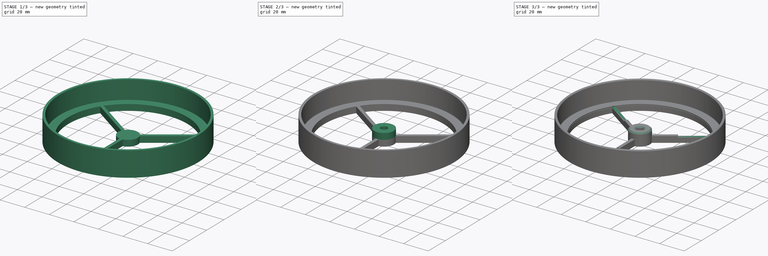
[diagram: build sequence overview — one tinted view per stage of 3, left to right]
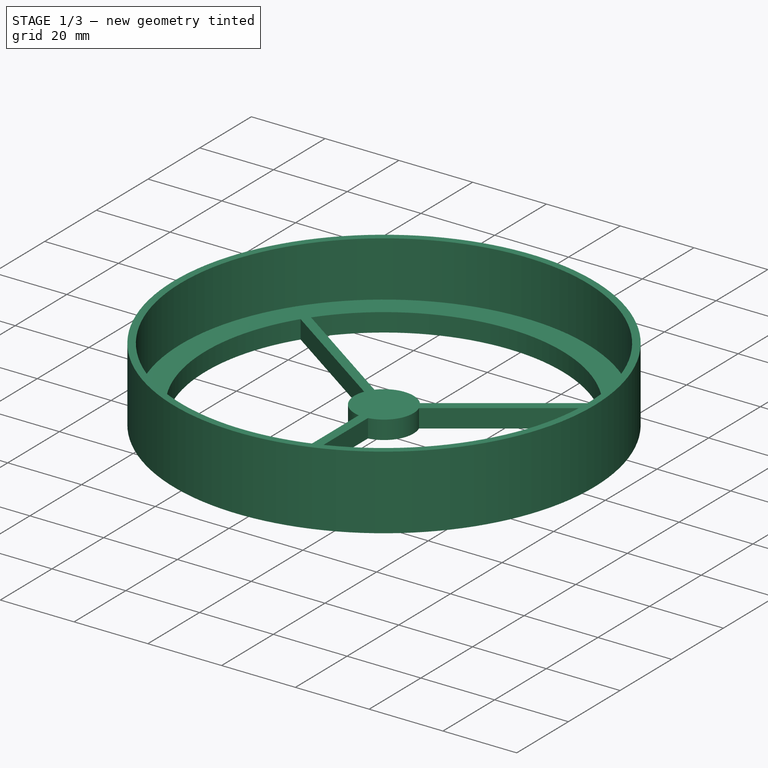
[diagram: stage 1 of 3 — iso view after this stage's code; geometry added in this stage tinted green]
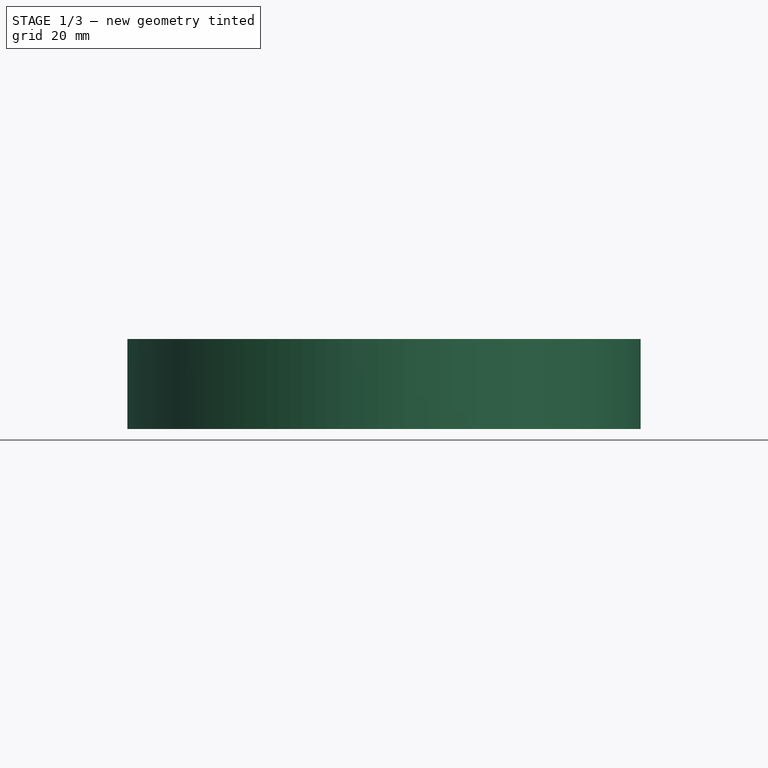
[diagram: stage 1 of 3 — front view after this stage's code; geometry added in this stage tinted green]
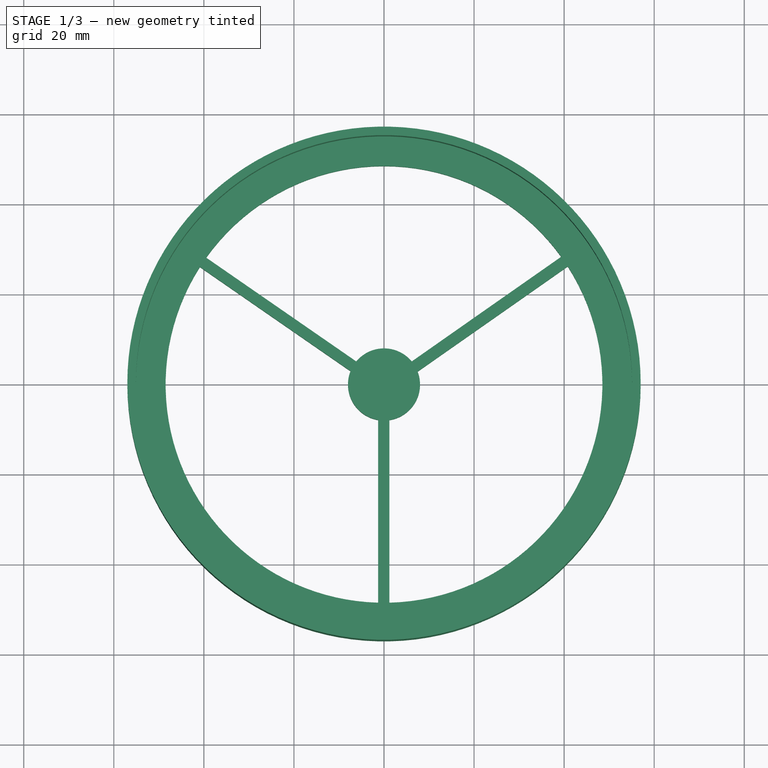
[diagram: stage 1 of 3 — top view after this stage's code; geometry added in this stage tinted green]
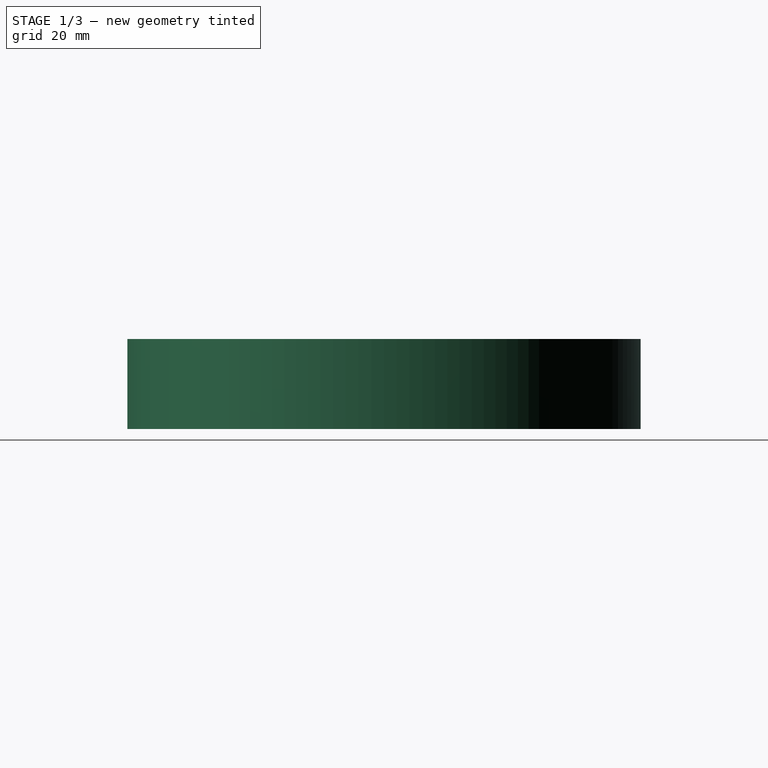
[diagram: stage 1 of 3 — right view after this stage's code; geometry added in this stage tinted green]
FCSTD DOCUMENT  (FreeCAD 0.16R)
Label: thingie
License: All rights reserved
LicenseURL: http://en.wikipedia.org/wiki/All_rights_reserved
objects: Sketcher::SketchObject×6, PartDesign::Pad×4, PartDesign::Pocket×2, PartDesign::Chamfer×2
note: 20 computed .brp shape members not serialized (recipe doc carries the construction recipe); baked Part::Feature solids carry a one-line shape summary decoded from their .brp

FEATURE [Sketcher::SketchObject] Sketch
  sketch-geometry (13):
    g0: Circle CenterX=0 CenterY=0 CenterZ=0 NormalX=0 NormalY=0 NormalZ=1 Radius=57
    g1: LineSegment StartX=6.16157 StartY=5.10245 StartZ=0 EndX=39.35 EndY=28.3519 EndZ=0
    g2: LineSegment StartX=7.47242 StartY=2.85709 StartZ=0 EndX=40.8081 EndY=26.2097 EndZ=0
    g3: LineSegment StartX=-1.30692 StartY=-7.89253 StartZ=0 EndX=-1.30692 EndY=-48.4824 EndZ=0
    g4: LineSegment StartX=1.19308 StartY=-7.91054 StartZ=0 EndX=1.19308 EndY=-48.4853 EndZ=0
    g5: LineSegment StartX=-6.16157 StartY=5.10245 StartZ=0 EndX=-39.4901 EndY=28.1563 EndZ=0
    g6: LineSegment StartX=-7.43565 StartY=2.95147 StartZ=0 EndX=-40.8853 EndY=26.0891 EndZ=0
    g7: ArcOfCircle CenterX=0 CenterY=0 CenterZ=0 NormalX=0 NormalY=0 NormalZ=1 Radius=48.5 StartAngle=0.624357 EndAngle=2.5222
    g8: ArcOfCircle CenterX=0 CenterY=0 CenterZ=0 NormalX=0 NormalY=0 NormalZ=1 Radius=48.5 StartAngle=4.73699 EndAngle=6.85411
    g9: ArcOfCircle CenterX=0 CenterY=0 CenterZ=0 NormalX=0 NormalY=0 NormalZ=1 Radius=48.5 StartAngle=2.57362 EndAngle=4.68544
    g10: ArcOfCircle CenterX=0 CenterY=0 CenterZ=0 NormalX=0 NormalY=0 NormalZ=1 Radius=8 StartAngle=0.691647 EndAngle=2.44995
    g11: ArcOfCircle CenterX=0 CenterY=0 CenterZ=0 NormalX=0 NormalY=0 NormalZ=1 Radius=8 StartAngle=4.86208 EndAngle=6.64838
    g12: ArcOfCircle CenterX=0 CenterY=0 CenterZ=0 NormalX=0 NormalY=0 NormalZ=1 Radius=8 StartAngle=2.76373 EndAngle=4.54829
  constraints (34):
    c: Coincident(g0,g-1)
    c: Radius(g0) = 57
    c: Parallel(g2,g1)
    c: Vertical(g3)
    c: Vertical(g4)
    c: DistanceX(g3,g4) = 2.5
    c: Distance(g2,g1) = 2.6
    c: Parallel(g5,g6)
    c: Distance(g6,g5) = 2.5
    c: DistanceY(g5,g1) = 0
    c: Coincident(g7,g-1)
    c: Coincident(g7,g5)
    c: Coincident(g7,g1)
    c: Coincident(g8,g-1)
    c: Coincident(g8,g2)
    c: Coincident(g8,g4)
    c: Coincident(g9,g-1)
    c: Coincident(g9,g3)
    c: Coincident(g9,g6)
    c: Coincident(g10,g-1)
    c: Coincident(g10,g1)
    c: Coincident(g10,g5)
    c: Coincident(g11,g-1)
    c: Coincident(g11,g2)
    c: Coincident(g11,g4)
    c: Coincident(g12,g-1)
    c: Coincident(g12,g3)
    c: Coincident(g12,g6)
    c: Radius(g8) = 48.5
    c: Equal(g8,g7)
    c: Equal(g8,g9)
    c: Equal(g12,g10)
    c: Equal(g10,g11)
    c: Radius(g12) = 8
FEATURE [PartDesign::Pad] Pad
  Length = 5
  Length2 = 100
  Sketch = -> Sketch
  Type = 0
FEATURE [Sketcher::SketchObject] Sketch001
  Placement = pos=(0,0,5) rot=(0,0,1;0rad)
  Support = -> Pad [Face15]
  sketch-geometry (2):
    g0: Circle CenterX=0 CenterY=0 CenterZ=0 NormalX=0 NormalY=0 NormalZ=1 Radius=57
    g1: Circle CenterX=0 CenterY=0 CenterZ=0 NormalX=0 NormalY=0 NormalZ=1 Radius=55.1
  constraints (4):
    c: Coincident(g0,g-1)
    c: Coincident(g1,g-1)
    c: Radius(g1) = 55.1
    c: Radius(g0) = 57
FEATURE [PartDesign::Pad] Pad001
  Length = 15
  Length2 = 100
  Sketch = -> Sketch001
  Type = 0
FEATURE [Sketcher::SketchObject] Sketch002
  Placement = pos=(0,0,20) rot=(0,0,1;0rad)
  Support = -> Pad001 [Face17]
  sketch-geometry (4):
    g0: LineSegment StartX=-4.44866 StartY=6.04225 StartZ=0 EndX=4.1894 EndY=6.04225 EndZ=0
    g1: LineSegment StartX=4.1894 StartY=6.04225 StartZ=0 EndX=4.1894 EndY=-5.60032 EndZ=0
    g2: LineSegment StartX=4.1894 StartY=-5.60032 StartZ=0 EndX=-4.44866 EndY=-5.60032 EndZ=0
    g3: LineSegment StartX=-4.44866 StartY=-5.60032 StartZ=0 EndX=-4.44866 EndY=6.04225 EndZ=0
  constraints (8):
    c: Coincident(g0,g1)
    c: Coincident(g1,g2)
    c: Coincident(g2,g3)
    c: Coincident(g3,g0)
    c: Horizontal(g0)
    c: Horizontal(g2)
    c: Vertical(g1)
    c: Vertical(g3)
FEATURE [PartDesign::Pad] Pad002
  Length = 10
  Length2 = 100
  Sketch = -> Sketch002
  Type = 0
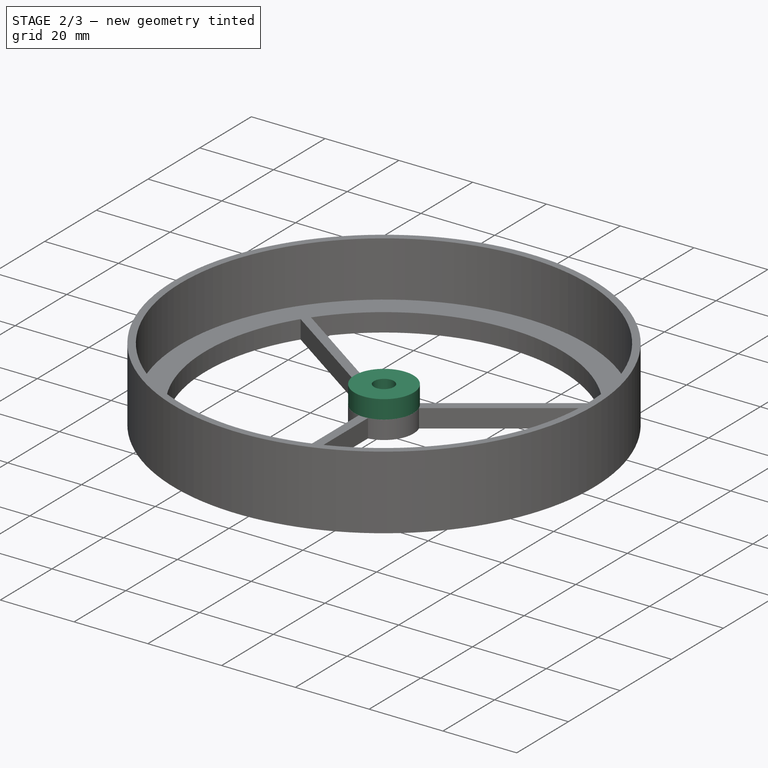
[diagram: stage 2 of 3 — iso view after this stage's code; geometry added in this stage tinted green]
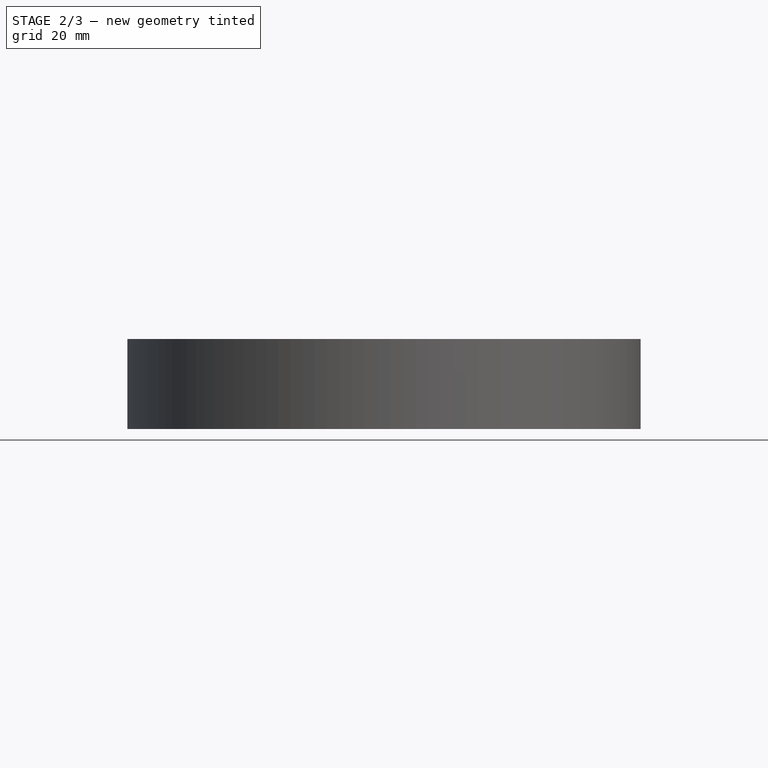
[diagram: stage 2 of 3 — front view after this stage's code; geometry added in this stage tinted green]
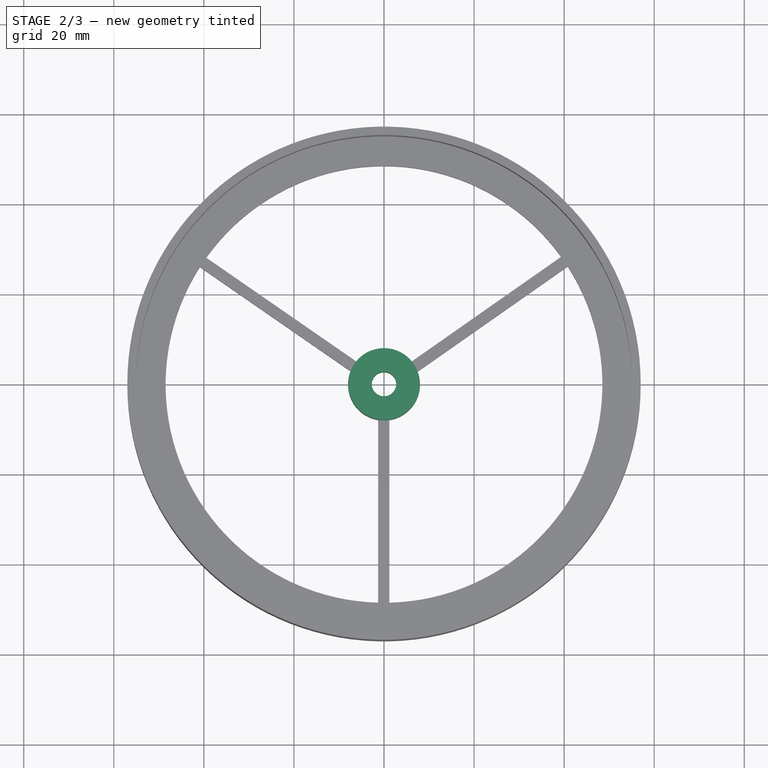
[diagram: stage 2 of 3 — top view after this stage's code; geometry added in this stage tinted green]
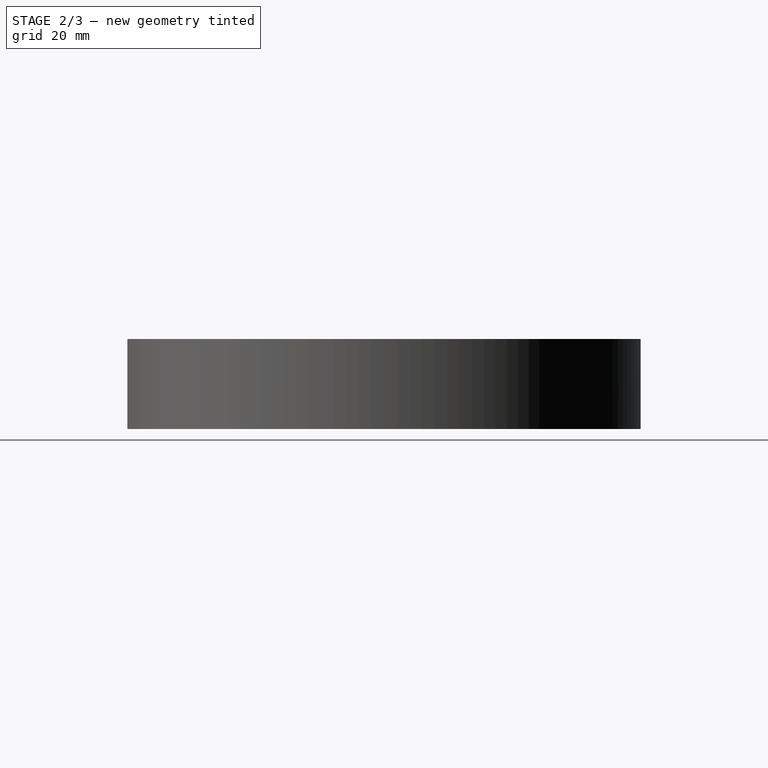
[diagram: stage 2 of 3 — right view after this stage's code; geometry added in this stage tinted green]
FEATURE [Sketcher::SketchObject] Sketch005
  Placement = pos=(0,0,5) rot=(0,0,1;0rad)
  Support = -> Pad002 [Face16]
  sketch-geometry (2):
    g0: Circle CenterX=0 CenterY=0 CenterZ=0 NormalX=0 NormalY=0 NormalZ=1 Radius=2.7065
    g1: Circle CenterX=0 CenterY=0 CenterZ=0 NormalX=0 NormalY=0 NormalZ=1 Radius=7.9731
  constraints (2):
    c: Coincident(g0,g-1)
    c: Coincident(g1,g-1)
FEATURE [PartDesign::Pad] Pad003
  Length = 5
  Length2 = 100
  Sketch = -> Sketch005
  Type = 0
FEATURE [Sketcher::SketchObject] Sketch006
  Placement = pos=(0,0,5) rot=(0,0,1;0rad)
  Support = -> Pad003 [Face22]
  sketch-geometry (1):
    g0: Circle CenterX=0 CenterY=0 CenterZ=0 NormalX=0 NormalY=0 NormalZ=1 Radius=2.72828
  constraints (1):
    c: Coincident(g0,g-1)
FEATURE [PartDesign::Pocket] Pocket
  Length = 5
  Sketch = -> Sketch006
  Type = 0
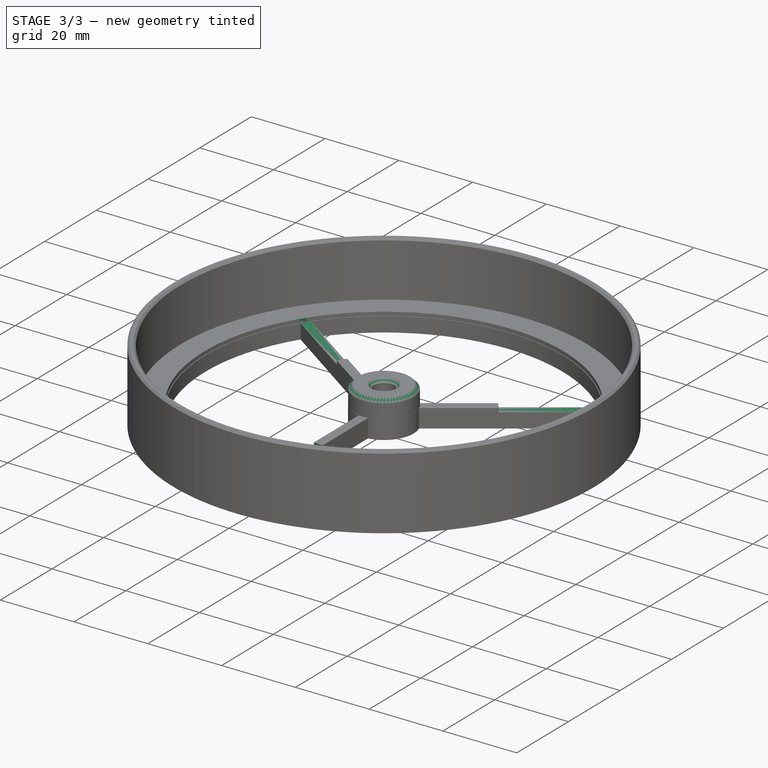
[diagram: stage 3 of 3 — iso view after this stage's code; geometry added in this stage tinted green]
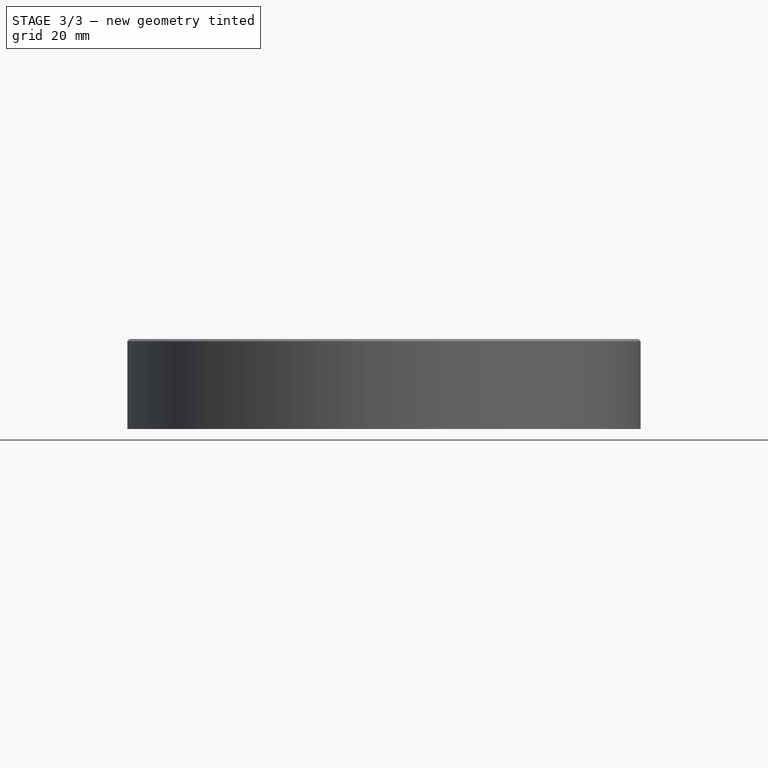
[diagram: stage 3 of 3 — front view after this stage's code; geometry added in this stage tinted green]
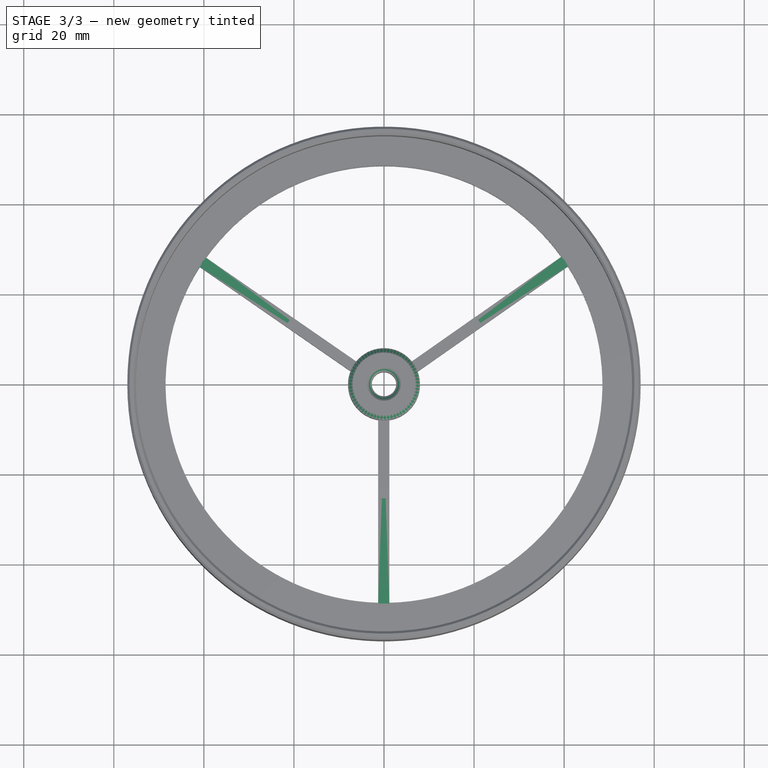
[diagram: stage 3 of 3 — top view after this stage's code; geometry added in this stage tinted green]
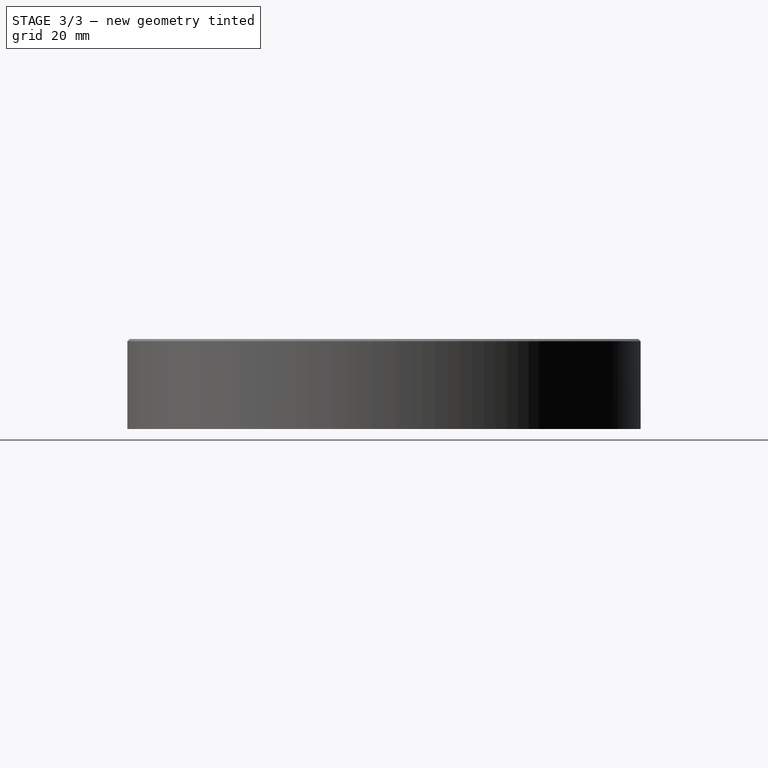
[diagram: stage 3 of 3 — right view after this stage's code; geometry added in this stage tinted green]
FEATURE [Sketcher::SketchObject] Sketch007
  Placement = pos=(0,0,5) rot=(0,0,1;0rad)
  Support = -> Pocket [Face18]
  sketch-geometry (2):
    g0: Circle CenterX=0 CenterY=0 CenterZ=0 NormalX=0 NormalY=0 NormalZ=1 Radius=25.3599
    g1: Circle CenterX=0 CenterY=0 CenterZ=0 NormalX=0 NormalY=0 NormalZ=1 Radius=48.683
  constraints (2):
    c: Coincident(g0,g-1)
    c: Coincident(g1,g-1)
FEATURE [PartDesign::Pocket] Pocket001
  Length = 1
  Sketch = -> Sketch007
  Type = 0
FEATURE [PartDesign::Chamfer] Chamfer
  Base = -> Pocket001 [Edge70,Edge68]
  Size = 1
FEATURE [PartDesign::Chamfer] Chamfer001
  Base = -> Chamfer [Edge69,Edge74]
  Size = 0.5
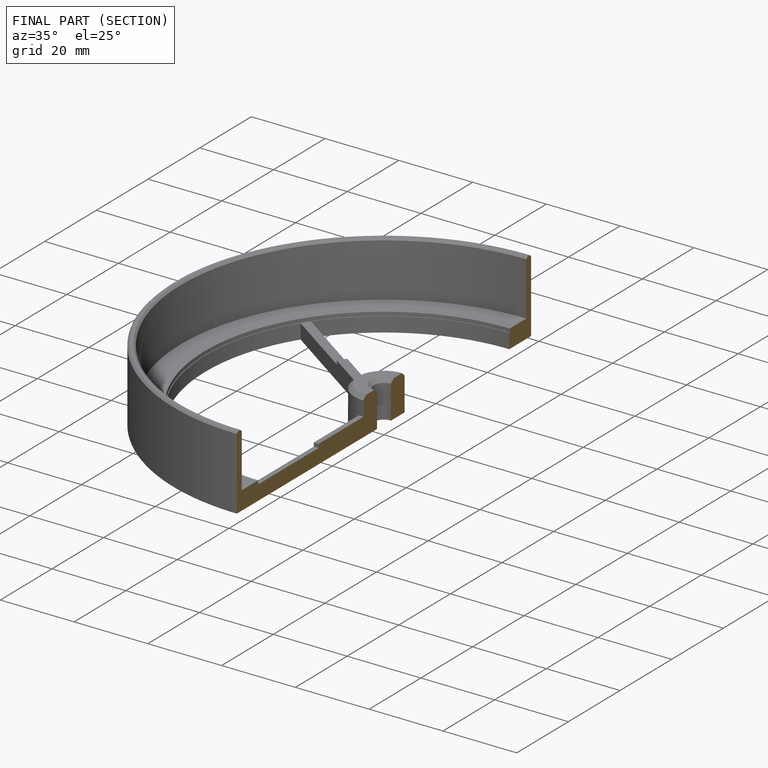
[diagram: finished part — half-section view (interior)]
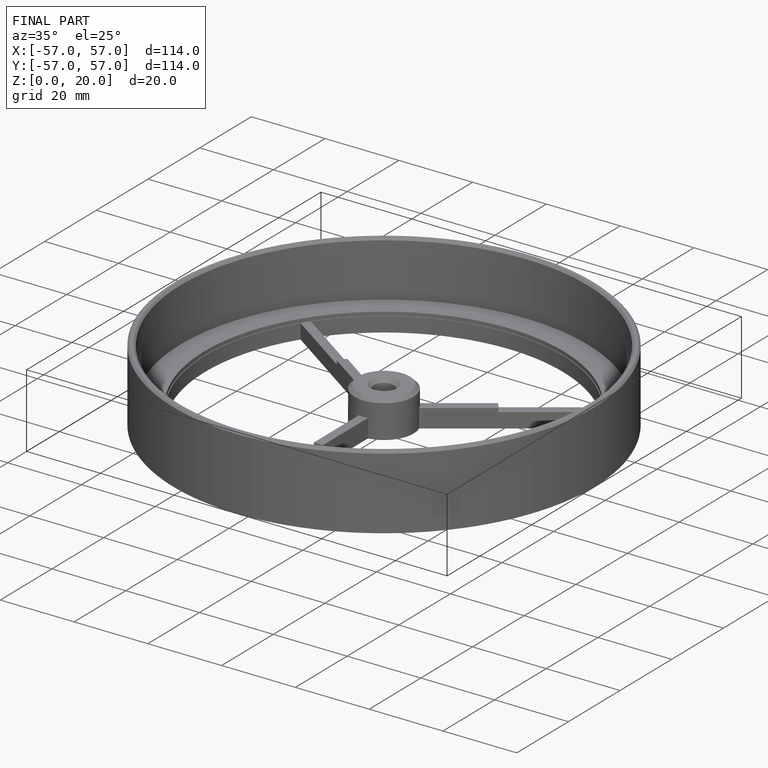
[diagram: finished part — iso view with bounding-box wireframe]
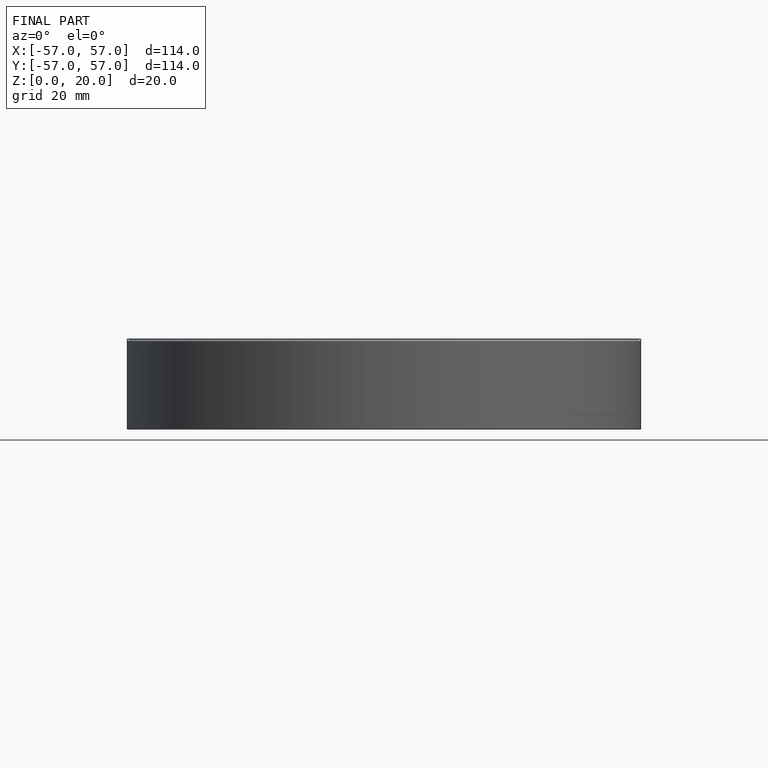
[diagram: finished part — front view with bounding-box wireframe]
